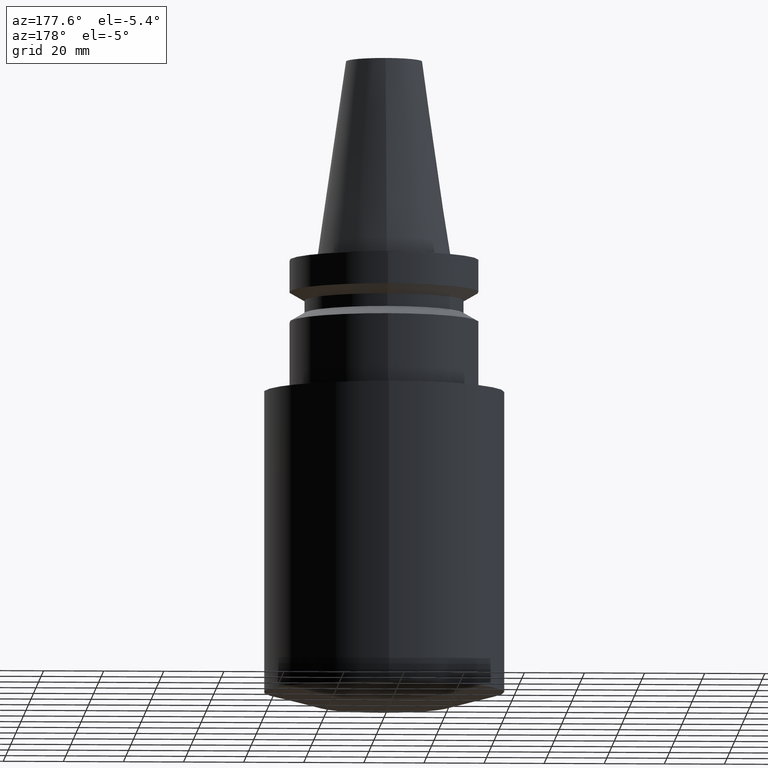
[diagram: clean part render]
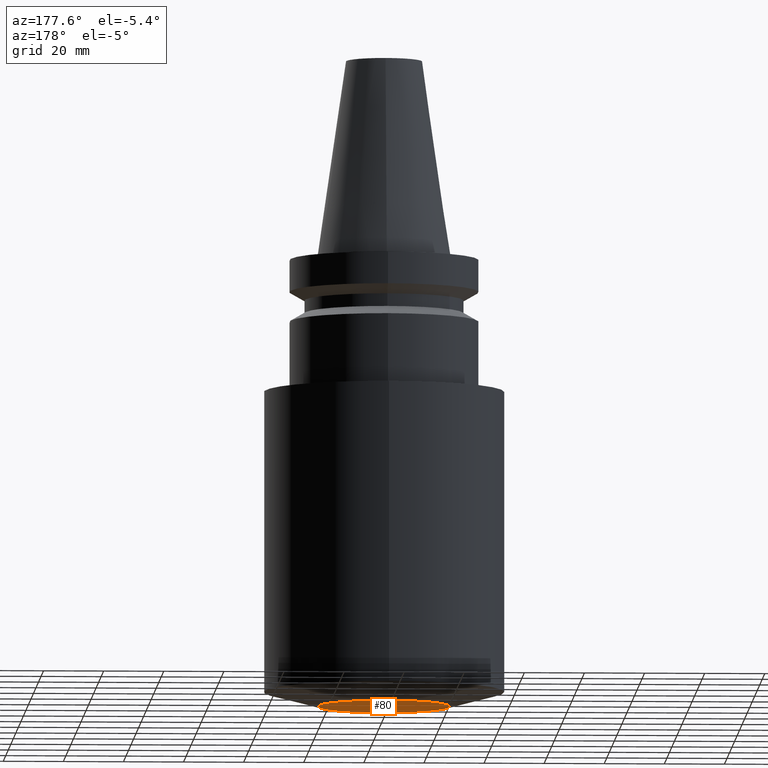
[diagram: same view with one face highlighted and labeled with its STEP entity id]
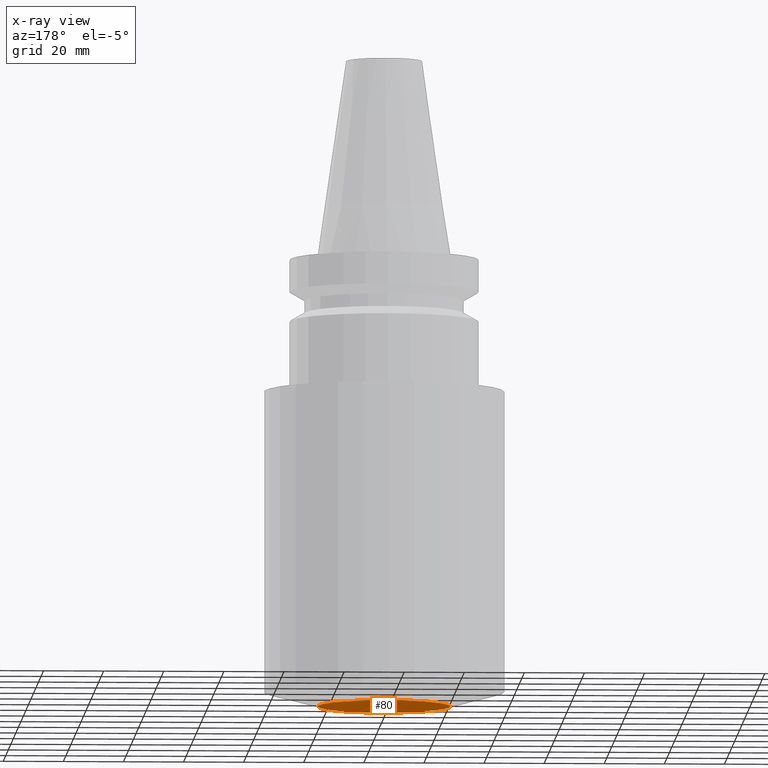
[diagram: x-ray of the same camera — body ghosted, the highlighted face saturated]
A machine part, auxiliary view. The second image highlights one B-rep face of the part: STEP entity #80.
The next image is the same camera in x-ray: the body ghosted, the highlighted face saturated — about 0% of this face is hidden behind the body in this view.
In plain terms, the highlighted planar face has unit normal (0, 0, -1).
Its self-contained STEP definition (entity closure, byte-faithful):
#80=ADVANCED_FACE('',(#104),#105,.T.);
#104=FACE_OUTER_BOUND('',#141,.T.);
#105=PLANE('',#142);
#141=EDGE_LOOP('',(#188));
#142=AXIS2_PLACEMENT_3D('',#189,#190,#191);
#188=ORIENTED_EDGE('',*,*,#231,.T.);
#189=CARTESIAN_POINT('',(9.18485099360515E-015,11.0,-150.0));
#190=DIRECTION('',(6.12323399573677E-017,1.22464679914735E-016,-1.0));
#191=DIRECTION('',(-1.23259516440783E-032,1.0,1.22464679914735E-016));
#231=EDGE_CURVE('',#248,#248,#249,.T.);
#248=VERTEX_POINT('',#272);
#249=CIRCLE('',#273,22.0);
#272=CARTESIAN_POINT('',(9.18485099360515E-015,22.0,-150.0));
#273=AXIS2_PLACEMENT_3D('',#301,#302,#303);
#301=CARTESIAN_POINT('',(9.18485099360515E-015,1.83697019872103E-014,-150.0));
#302=DIRECTION('',(6.12323399573677E-017,1.22464679914735E-016,-1.0));
#303=DIRECTION('',(-1.23259516440783E-032,1.0,1.22464679914735E-016));